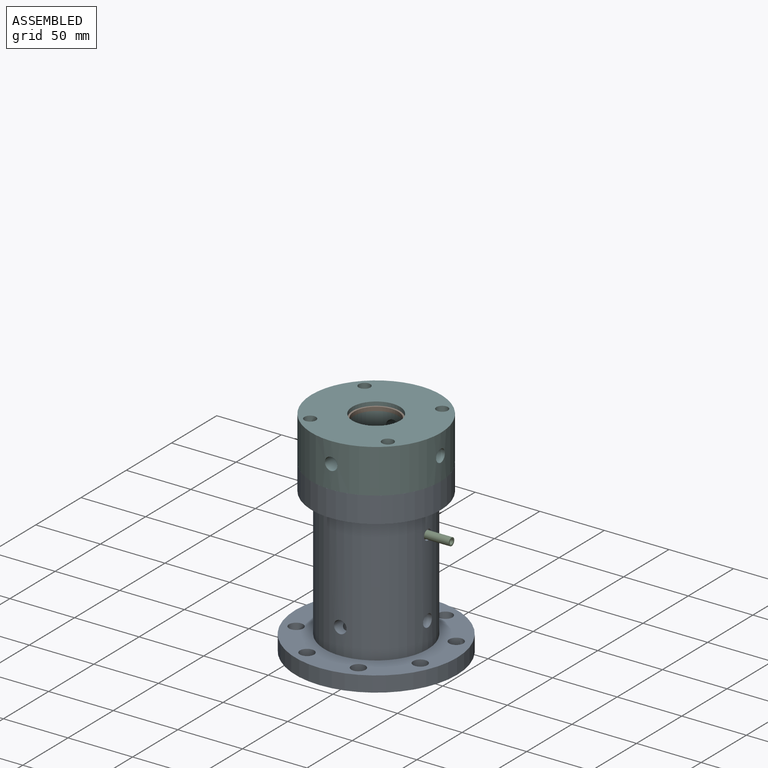
[diagram: assembled view]
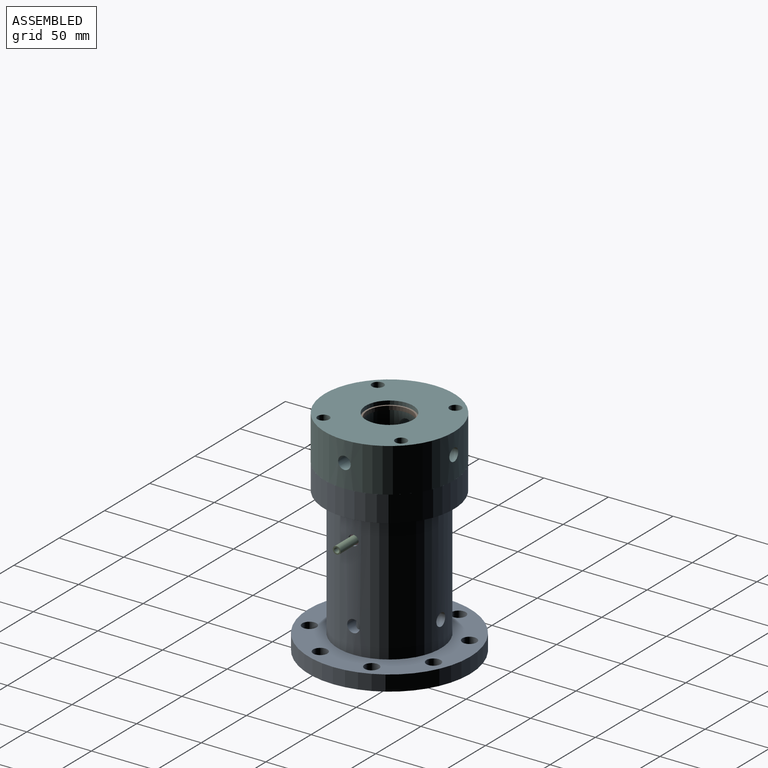
[diagram: assembled view, second angle]
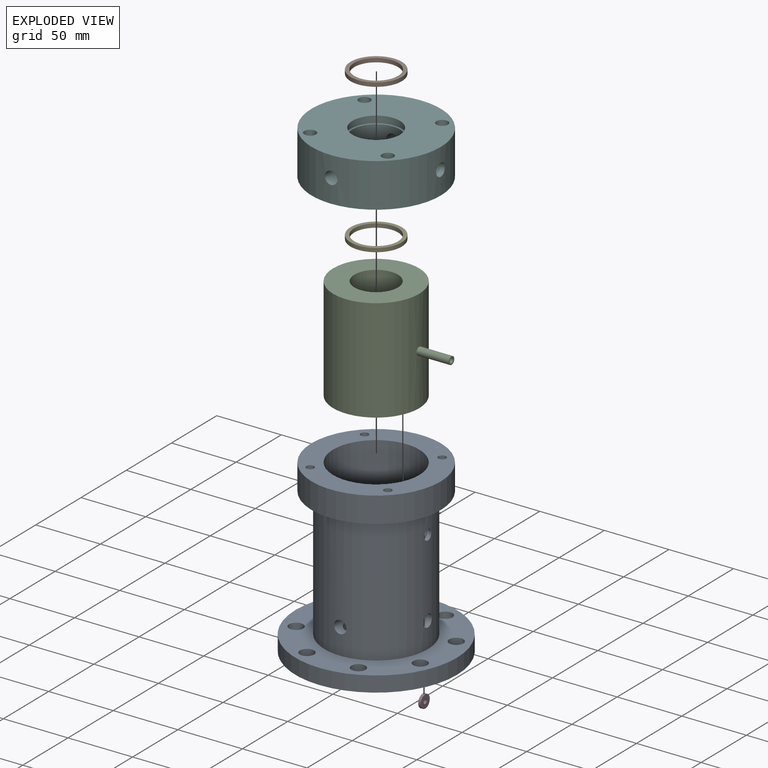
[diagram: exploded view]
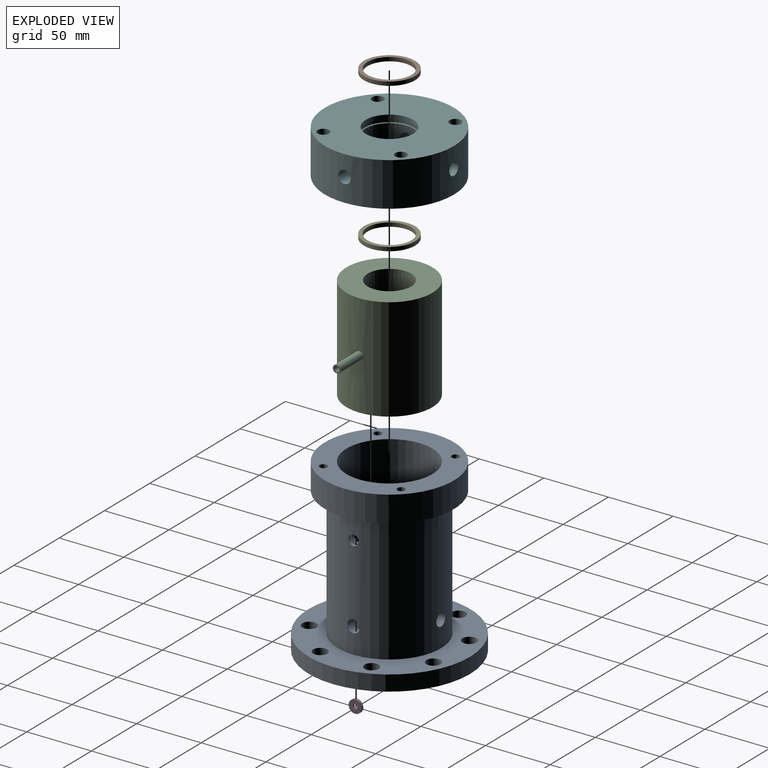
[diagram: exploded view, second angle]
ASSEMBLY  parts=6 mates=5
PART A: 64 faces, bbox 125x125x134 mm
  f0: cylinder r=4mm len=8mm, axis (1,0,0), area 69.6mm2, adj f1,f2
  f1: cylinder r=33.35mm len=80mm, axis (0,0,-1), area 16713.2mm2, adj f0,f3,f4
  f2: plane 10x10mm, normal (1,0,0), area 28.3mm2, adj f0,f5
  f3: plane 100x100mm, normal (0,0,1), area 4246.7mm2, adj f1,f6,f7,f8,f9,f10
  f4: plane 66.7x66.7mm, normal (0,0,1), area 2436.3mm2, adj f1,f11
  f5: cylinder r=5mm len=10mm, axis (1,0,0), area 62.8mm2, adj f2,f12
  f6: cylinder r=3mm len=10mm, axis (0,0,1), area 188.5mm2, adj f3,f13
  f7: cylinder r=3mm len=10mm, axis (0,0,1), area 188.5mm2, adj f3,f14
  f8: cylinder r=3mm len=10mm, axis (0,0,1), area 188.5mm2, adj f3,f15
  f9: cylinder r=3mm len=10mm, axis (0,0,1), area 188.5mm2, adj f3,f16
  f10: cylinder r=50mm len=100mm, axis (0,0,-1), area 6283.2mm2, adj f3,f17
  f11: cylinder r=18.35mm len=36.7mm, axis (0,0,-1), area 576.5mm2, adj f4,f18
  f12: plane 10x10mm, normal (-1,0,0), area 28.3mm2, adj f5,f19
  f13: plane 6x6mm, normal (0,0,1), area 28.3mm2, adj f6
  f14: plane 6x6mm, normal (0,0,1), area 28.3mm2, adj f7
  f15: plane 6x6mm, normal (0,0,1), area 28.3mm2, adj f8
  f16: plane 6x6mm, normal (0,0,1), area 28.3mm2, adj f9
  f17: plane 100x100mm, normal (0,0,-1), area 2827.4mm2, adj f10,f20
  f18: plane 39.7x39.7mm, normal (0,0,-1), area 180mm2, adj f11,f21
  f19: cylinder r=4mm len=8mm, axis (1,0,0), area 47.7mm2, adj f12,f20
  f20: cylinder r=40mm len=100mm, axis (0,0,-1), area 24784.2mm2, adj f17,f19,f22,f23,f24,f25,f26
  f21: cylinder r=19.85mm len=39.7mm, axis (0,0,-1), area 498.9mm2, adj f18,f27
  f22: cylinder r=4.86mm len=10.83mm, axis (-1,0,0), area 259.4mm2, adj f20,f28,f29,f30
  f23: plane 125x125mm, normal (0,0,1), area 6485mm2, adj f20,f31,f32,f33,f34,f35,f36,f37
  f24: cylinder r=4.86mm len=10.83mm, axis (0,-1,0), area 259.4mm2, adj f20,f40,f41,f42,f43
  f25: cylinder r=4.86mm len=10.83mm, axis (1,0,0), area 259.4mm2, adj f20,f44,f45,f46
  f26: cylinder r=4.86mm len=10.83mm, axis (0,1,0), area 259.5mm2, adj f20,f47,f48,f49,f50
  f27: plane 39.7x39.7mm, normal (0,0,1), area 180mm2, adj f21,f51
  f28: plane 4.55x0.56mm, normal (1,0,0), area 1.7mm2, adj f22,f29
  f29: cylinder r=4.3mm len=9.73mm, axis (0,0,-1), area 99.6mm2, adj f22,f28,f30
  f30: plane 4.55x0.56mm, normal (1,0,0), area 1.7mm2, adj f22,f29
  f31: cylinder r=5.5mm len=12mm, axis (0,0,1), area 414.7mm2, adj f23,f52
  f32: cylinder r=5.5mm len=12mm, axis (0,0,1), area 414.7mm2, adj f23,f52
  f33: cylinder r=5.5mm len=12mm, axis (0,0,1), area 414.7mm2, adj f23,f52
  f34: cylinder r=5.5mm len=12mm, axis (0,0,1), area 414.7mm2, adj f23,f52
  f35: cylinder r=5.5mm len=12mm, axis (0,0,1), area 414.7mm2, adj f23,f52
  f36: cylinder r=5.5mm len=12mm, axis (0,0,1), area 414.7mm2, adj f23,f52
  f37: cylinder r=5.5mm len=12mm, axis (0,0,1), area 414.7mm2, adj f23,f52
  f38: cylinder r=5.5mm len=12mm, axis (0,0,1), area 414.7mm2, adj f23,f52
  f39: cylinder r=62.5mm len=125mm, axis (0,0,-1), area 4712.4mm2, adj f23,f52
  f40: cylinder r=4.3mm len=4.3mm, axis (0,0,-1), area 7.9mm2, adj f24,f41,f53
  f41: cylinder r=4.3mm len=38.86mm, axis (0,0,-1), area 942.4mm2, adj f24,f40,f42,f43,f53,f54
  f42: plane 4.55x0.56mm, normal (0,1,0), area 1.7mm2, adj f24,f41
  f43: plane 4.55x0.56mm, normal (0,1,0), area 1.7mm2, adj f24,f41
  f44: cylinder r=4.3mm len=38.86mm, axis (0,0,-1), area 950.4mm2, adj f25,f45,f46,f54,f55
  f45: plane 4.55x0.56mm, normal (-1,0,0), area 1.7mm2, adj f25,f44
  f46: plane 4.55x0.56mm, normal (-1,0,0), area 1.7mm2, adj f25,f44
  f47: plane 4.55x0.56mm, normal (0,-1,0), area 1.7mm2, adj f26,f48
  f48: cylinder r=4.3mm len=38.86mm, axis (0,0,-1), area 942.5mm2, adj f26,f47,f49,f50,f54,f56
  f49: cylinder r=4.3mm len=4.3mm, axis (0,0,-1), area 7.9mm2, adj f26,f48,f56
  f50: plane 4.55x0.56mm, normal (0,-1,0), area 1.7mm2, adj f26,f48
  f51: cylinder r=18.35mm len=45mm, axis (0,0,-1), area 5188.3mm2, adj f27,f54
  f52: plane 125x125mm, normal (0,0,-1), area 5107.4mm2, adj f31,f32,f33,f34,f35,f36,f37,f38
  f53: plane 8.6x8.6mm, normal (0,0,-1), area 58.1mm2, adj f40,f41
  f54: plane 74x74mm, normal (0,0,-1), area 3010.6mm2, adj f41,f44,f48,f51,f58,f59
  f55: plane 8.6x8.6mm, normal (0,0,-1), area 58.1mm2, adj f44
  f56: plane 8.6x8.6mm, normal (0,0,-1), area 58.1mm2, adj f48,f49
  f57: cylinder r=45.15mm len=90.3mm, axis (0,0,-1), area 1248.2mm2, adj f52,f60
  f58: cylinder r=4.3mm len=38.86mm, axis (0,0,-1), area 1050mm2, adj f54,f61
  f59: cylinder r=37mm len=74mm, axis (0,0,-1), area 465mm2, adj f54,f62
  f60: plane 90.3x90.3mm, normal (0,0,-1), area 1339.9mm2, adj f57,f63
  f61: plane 8.6x8.6mm, normal (0,0,-1), area 58.1mm2, adj f58
  f62: plane 80.3x80.3mm, normal (0,0,-1), area 763.5mm2, adj f59,f63
  f63: cylinder r=40.15mm len=80.3mm, axis (0,0,-1), area 1110mm2, adj f60,f62
PART B: 4 faces, bbox 39.7x39.7x3 mm
  f0: cylinder r=17mm len=34mm, axis (0,0,-1), area 320.4mm2, adj f2,f3
  f1: cylinder r=19.85mm len=39.7mm, axis (0,0,-1), area 374.2mm2, adj f2,f3
  f2: plane 39.7x39.7mm, normal (0,0,1), area 329.9mm2, adj f0,f1
  f3: plane 39.7x39.7mm, normal (0,0,-1), area 329.9mm2, adj f0,f1
PART C: 9 faces, bbox 91.7x66.7x80 mm
  f0: cylinder r=3mm len=6mm, axis (1,0,0), area 30.8mm2, adj f1,f8
  f1: cylinder r=16.85mm len=80mm, axis (0,0,-1), area 8441.4mm2, adj f0,f3,f4
  f2: cylinder r=33.35mm len=80mm, axis (0,0,-1), area 16735.2mm2, adj f3,f4,f5
  f3: plane 66.7x66.7mm, normal (0,0,1), area 2602.2mm2, adj f1,f2
  f4: plane 66.7x66.7mm, normal (0,0,-1), area 2602.2mm2, adj f1,f2
  f5: cylinder r=3mm len=25.14mm, axis (-1,0,0), area 472.5mm2, adj f2,f7
  f6: cylinder r=2mm len=40mm, axis (-1,0,0), area 502.7mm2, adj f7,f8
  f7: plane 6x6mm, normal (1,0,0), area 15.7mm2, adj f5,f6
  f8: plane 6x6mm, normal (-1,0,0), area 15.7mm2, adj f0,f6
PART D: 4 faces, bbox 2x10x10 mm
  f0: cylinder r=1.75mm len=3.5mm, axis (-1,0,0), area 22mm2, adj f2,f3
  f1: cylinder r=5mm len=10mm, axis (-1,0,0), area 62.8mm2, adj f2,f3
  f2: plane 10x10mm, normal (1,0,0), area 68.9mm2, adj f0,f1
  f3: plane 10x10mm, normal (-1,0,0), area 68.9mm2, adj f0,f1
PART E: same geometry as B
PART F: 28 faces, bbox 100x100x34 mm
  f0: cylinder r=50mm len=100mm, axis (0,0,-1), area 10383mm2, adj f5,f11,f12,f13,f14,f15
  f1: cylinder r=18.35mm len=36.7mm, axis (0,0,-1), area 2005.7mm2, adj f2,f7,f12,f13,f14,f15
  f2: plane 39.7x39.7mm, normal (0,0,1), area 180mm2, adj f1,f8
  f3: plane 39.7x39.7mm, normal (0,0,1), area 180mm2, adj f4,f6
  f4: cylinder r=18.35mm len=36.7mm, axis (0,0,-1), area 576.5mm2, adj f3,f5
  f5: plane 100x100mm, normal (0,0,-1), area 6683mm2, adj f0,f4,f24,f25,f26,f27
  f6: cylinder r=19.85mm len=39.7mm, axis (0,0,-1), area 374.2mm2, adj f3,f7
  f7: plane 39.7x39.7mm, normal (0,0,-1), area 180mm2, adj f1,f6
  f8: cylinder r=19.85mm len=39.7mm, axis (0,0,-1), area 374.2mm2, adj f2,f9
  f9: plane 39.7x39.7mm, normal (0,0,-1), area 180mm2, adj f8,f10
  f10: cylinder r=18.35mm len=36.7mm, axis (0,0,-1), area 345.9mm2, adj f9,f11
  f11: plane 100x100mm, normal (0,0,1), area 6541.7mm2, adj f0,f10,f16,f18,f20,f22
  f12: cylinder r=4.86mm len=32.31mm, axis (1,0,0), area 973.6mm2, adj f0,f1
  f13: cylinder r=4.86mm len=32.31mm, axis (-1,0,0), area 973.6mm2, adj f0,f1
  f14: cylinder r=4.86mm len=32.31mm, axis (0,-1,0), area 973.6mm2, adj f0,f1
  f15: cylinder r=4.86mm len=32.31mm, axis (0,1,0), area 973.6mm2, adj f0,f1
  f16: cylinder r=4.5mm len=10mm, axis (0,0,1), area 282.7mm2, adj f11,f17
  f17: plane 9x9mm, normal (0,0,1), area 35.3mm2, adj f16,f27
  f18: cylinder r=4.5mm len=10mm, axis (0,0,1), area 282.7mm2, adj f11,f19
  f19: plane 9x9mm, normal (0,0,1), area 35.3mm2, adj f18,f26
  f20: cylinder r=4.5mm len=10mm, axis (0,0,1), area 282.7mm2, adj f11,f21
  f21: plane 9x9mm, normal (0,0,1), area 35.3mm2, adj f20,f25
  f22: cylinder r=4.5mm len=10mm, axis (0,0,1), area 282.7mm2, adj f11,f23
  f23: plane 9x9mm, normal (0,0,1), area 35.3mm2, adj f22,f24
  f24: cylinder r=3mm len=24mm, axis (0,0,1), area 452.4mm2, adj f5,f23
  f25: cylinder r=3mm len=24mm, axis (0,0,1), area 452.4mm2, adj f5,f21
  f26: cylinder r=3mm len=24mm, axis (0,0,1), area 452.4mm2, adj f5,f19
  f27: cylinder r=3mm len=24mm, axis (0,0,1), area 452.4mm2, adj f5,f17
PLACE A t=(-23.13,9.5,-32.71)mm
PLACE B t=(-23.13,9.5,129.29)mm
PLACE C t=(-23.13,9.5,21.29)mm
PLACE D t=(12.87,9.5,61.29)mm
PLACE E t=(-23.13,9.5,106.29)mm
PLACE F t=(-23.13,9.5,101.29)mm
MATE fastened C.f2 <-> A.f1  axis (0,0,-1) through (-23.13,9.5,21.29)mm
MATE fastened F.f20 <-> A.f8  axis (0,0,-1) through (-53.18,-20.55,101.29)mm
MATE fastened E.f0 <-> F.f1  axis (0,0,1) through (-23.13,9.5,109.29)mm
MATE fastened D.f0 <-> A.f0  axis (1,0,0) through (14.87,9.5,61.29)mm
MATE fastened B.f1 <-> F.f1  axis (0,0,1) through (-23.13,9.5,132.29)mm
